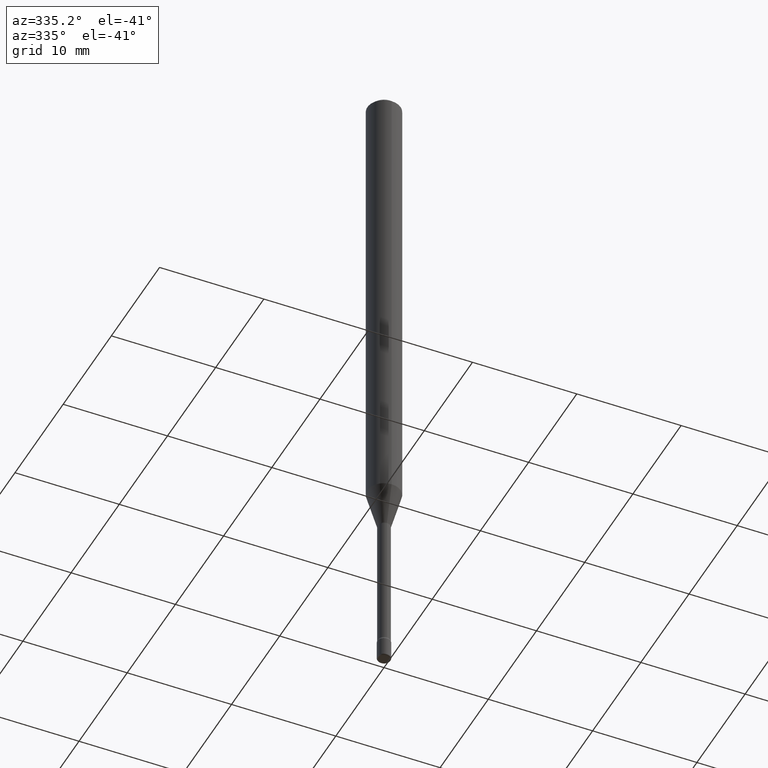
[diagram: clean part render]
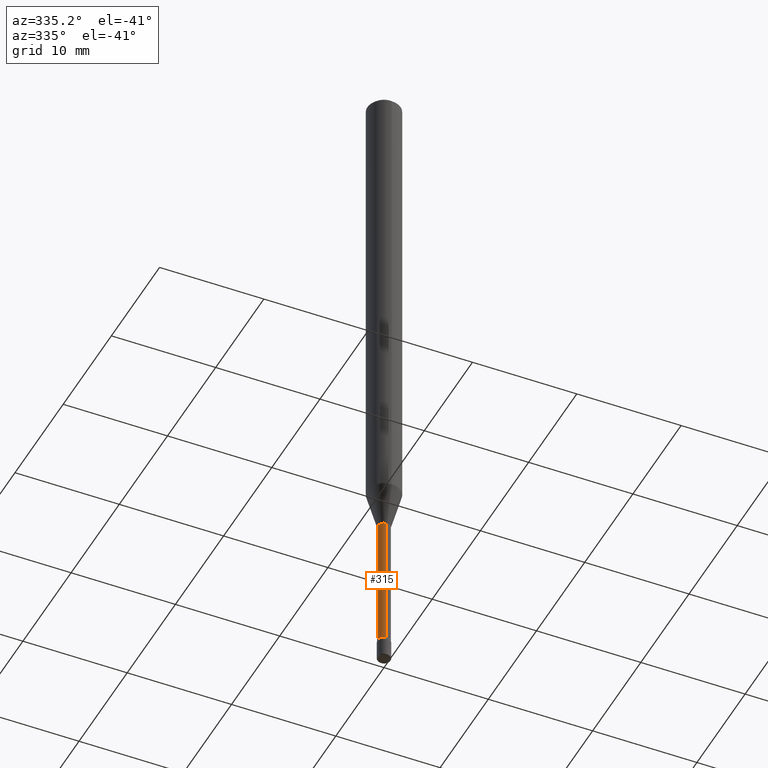
[diagram: same view with one face highlighted and labeled with its STEP entity id]
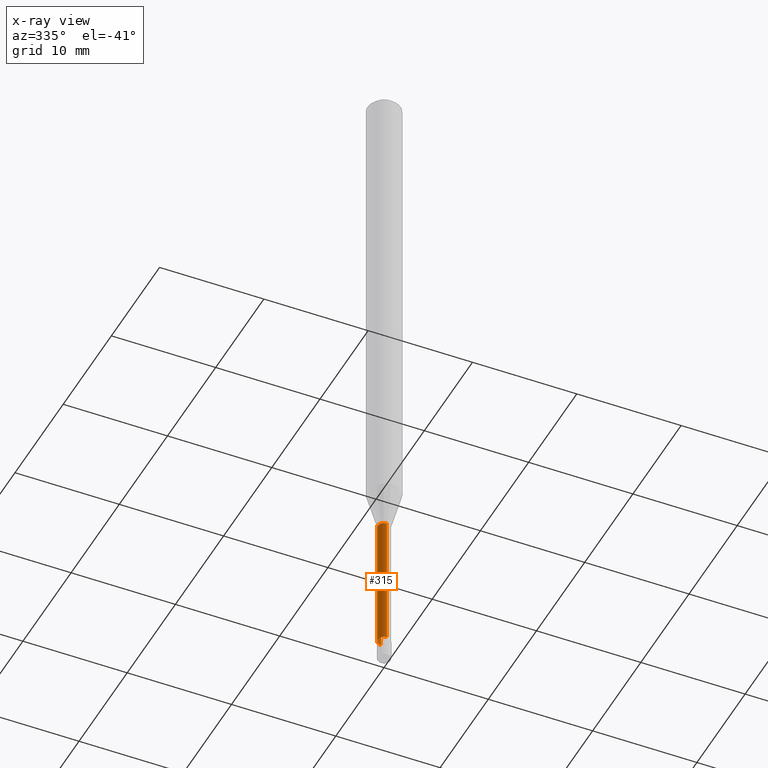
[diagram: x-ray of the same camera — body ghosted, the highlighted face saturated]
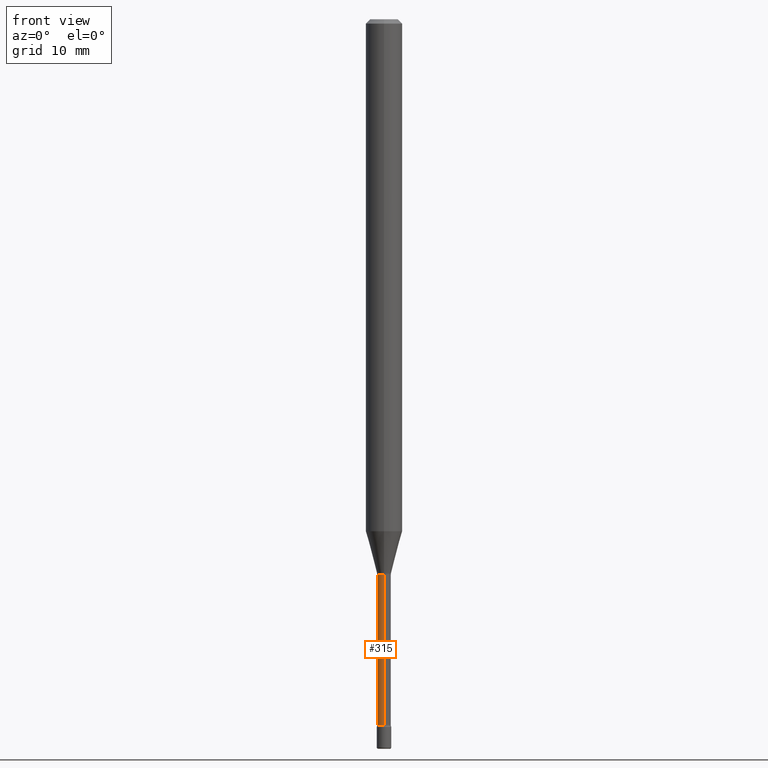
[diagram: same view with one face highlighted and labeled with its STEP entity id]
A machine part, auxiliary view. The second image highlights one B-rep face of the part: STEP entity #315.
The next image is the same camera in x-ray: the body ghosted, the highlighted face saturated — about 0% of this face is hidden behind the body in this view.
A second angle (front view) of the same face is appended — the face is thin or edge-on in the first view.
In plain terms, the highlighted cylindrical surface (edge-blend (fillet) strip) has radius 0.5969 mm, axis along (-0, 0, 1).
Its self-contained STEP definition (entity closure, byte-faithful):
#34 = DIRECTION ( 'NONE',  ( -6.982962677686265922E-15, -1.000000000000000000, 0.000000000000000000 ) ) ;
#118 = CARTESIAN_POINT ( 'NONE',  ( 5.914114315026723309E-29, -8.444240295062814699E-15, -2.418461651584689065 ) ) ;
#148 = VECTOR ( 'NONE', #169, 39.37007874015748143 ) ;
#167 = CARTESIAN_POINT ( 'NONE',  ( 1.669775429036235194E-16, 0.02350000000000000352, 3.960213858672027518E-16 ) ) ;
#169 = DIRECTION ( 'NONE',  ( -2.445403387377062590E-29, 3.491575022299715255E-15, 1.000000000000000000 ) ) ;
#170 = CARTESIAN_POINT ( 'NONE',  ( -1.640996229256272766E-16, -0.02350000000000000352, 5.601254119152893254E-16 ) ) ;
#172 = DIRECTION ( 'NONE',  ( -2.445403387377062590E-29, 3.491575022299714860E-15, 1.000000000000000000 ) ) ;
#212 = DIRECTION ( 'NONE',  ( -2.445403387377062590E-29, 3.491575022299715255E-15, 1.000000000000000000 ) ) ;
#220 = CARTESIAN_POINT ( 'NONE',  ( 1.723066134218835880E-16, 0.02349999999999155889, -2.418461651584689065 ) ) ;
#227 = AXIS2_PLACEMENT_3D ( 'NONE', #228, #381, #390 ) ;
#228 = CARTESIAN_POINT ( 'NONE',  ( 4.651095587969773303E-29, -6.640887660952452658E-15, -1.901974787463811323 ) ) ;
#229 = ORIENTED_EDGE ( 'NONE', *, *, #439, .F. ) ;
#235 = ORIENTED_EDGE ( 'NONE', *, *, #317, .T. ) ;
#241 = EDGE_CURVE ( 'NONE', #393, #378, #474, .T. ) ;
#292 = FACE_OUTER_BOUND ( 'NONE', #386, .T. ) ;
#294 = AXIS2_PLACEMENT_3D ( 'NONE', #118, #418, #34 ) ;
#315 = ADVANCED_FACE ( 'NONE', ( #292 ), #506, .T. ) ;
#317 = EDGE_CURVE ( 'NONE', #376, #393, #539, .T. ) ;
#376 = VERTEX_POINT ( 'NONE', #220 ) ;
#378 = VERTEX_POINT ( 'NONE', #515 ) ;
#381 = DIRECTION ( 'NONE',  ( -2.445403387377062590E-29, 3.491575022299714860E-15, 1.000000000000000000 ) ) ;
#382 = ORIENTED_EDGE ( 'NONE', *, *, #516, .F. ) ;
#386 = EDGE_LOOP ( 'NONE', ( #229, #235, #560, #382 ) ) ;
#388 = CARTESIAN_POINT ( 'NONE',  ( -1.640996229255681367E-16, -0.02350000000000844469, -2.418461651584689065 ) ) ;
#390 = DIRECTION ( 'NONE',  ( -6.982962677686265922E-15, -1.000000000000000000, 0.000000000000000000 ) ) ;
#393 = VERTEX_POINT ( 'NONE', #388 ) ;
#404 = CIRCLE ( 'NONE', #227, 0.02350000000000000352 ) ;
#418 = DIRECTION ( 'NONE',  ( -2.445403387377062590E-29, 3.491575022299714860E-15, 1.000000000000000000 ) ) ;
#420 = CARTESIAN_POINT ( 'NONE',  ( 1.669775429036827579E-16, 0.02349999999999335953, -1.901974787463811323 ) ) ;
#435 = VERTEX_POINT ( 'NONE', #420 ) ;
#439 = EDGE_CURVE ( 'NONE', #376, #435, #550, .T. ) ;
#462 = DIRECTION ( 'NONE',  ( -6.982962677686265922E-15, -1.000000000000000000, 3.491575022299714466E-15 ) ) ;
#474 = LINE ( 'NONE', #170, #487 ) ;
#487 = VECTOR ( 'NONE', #212, 39.37007874015748143 ) ;
#503 = CARTESIAN_POINT ( 'NONE',  ( -1.169113584055446105E-44, 1.669184350826100908E-30, 4.780733988912460139E-16 ) ) ;
#506 = CYLINDRICAL_SURFACE ( 'NONE', #518, 0.02350000000000000352 ) ;
#515 = CARTESIAN_POINT ( 'NONE',  ( -1.640996229255807584E-16, -0.02350000000000664405, -1.901974787463811323 ) ) ;
#516 = EDGE_CURVE ( 'NONE', #435, #378, #404, .T. ) ;
#518 = AXIS2_PLACEMENT_3D ( 'NONE', #503, #172, #462 ) ;
#539 = CIRCLE ( 'NONE', #294, 0.02350000000000000352 ) ;
#550 = LINE ( 'NONE', #167, #148 ) ;
#560 = ORIENTED_EDGE ( 'NONE', *, *, #241, .T. ) ;